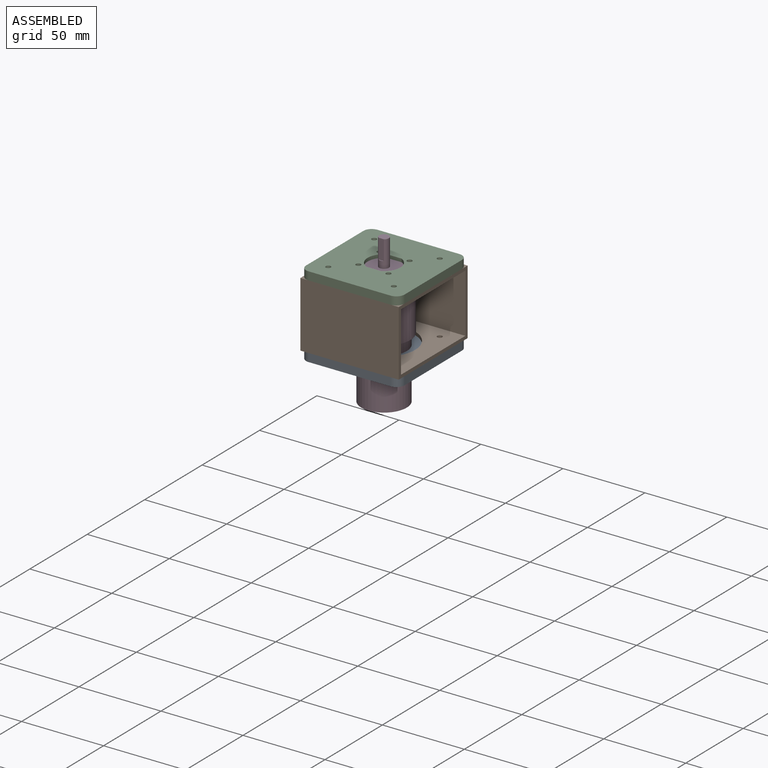
[diagram: assembled view]
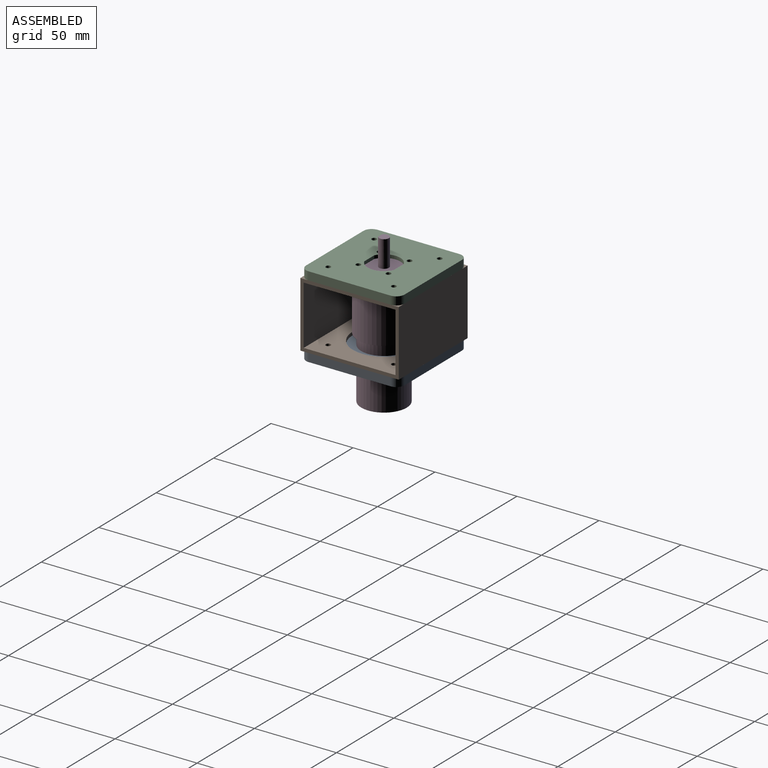
[diagram: assembled view, second angle]
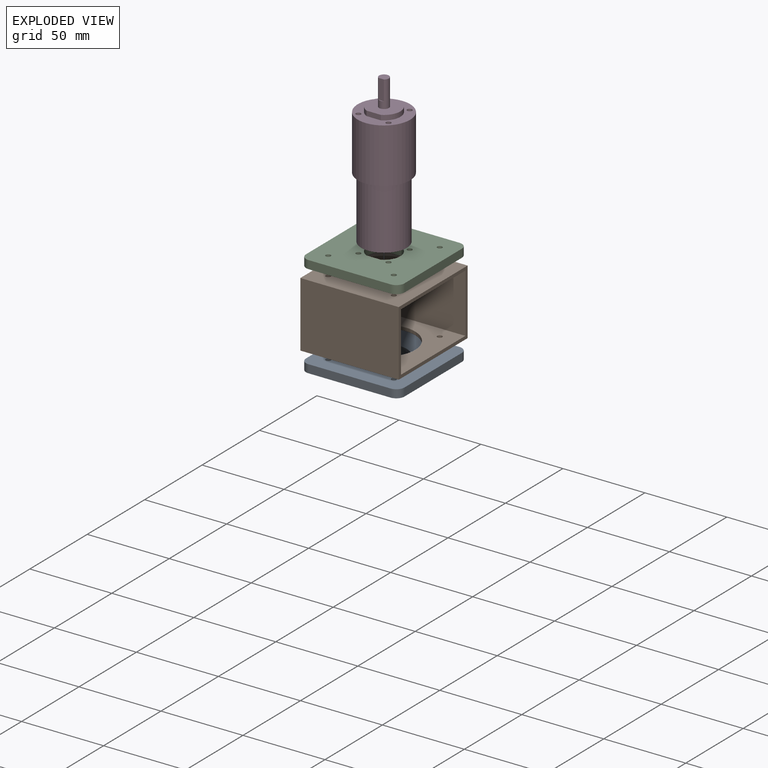
[diagram: exploded view]
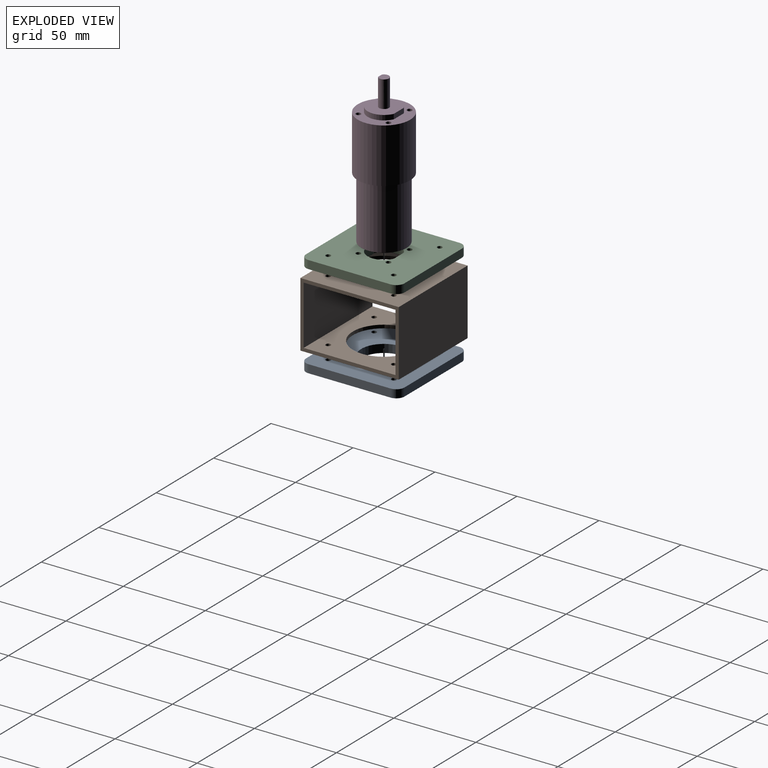
[diagram: exploded view, second angle]
ASSEMBLY  parts=4 mates=6
PART A: 15 faces, bbox 60x60x5 mm
  f0: plane 50x5mm, normal (-1,0,0), area 250mm2, adj f9,f10,f11,f14
  f1: plane 50x5mm, normal (0,-1,0), area 250mm2, adj f9,f10,f11,f12
  f2: plane 50x5mm, normal (1,0,0), area 250mm2, adj f9,f10,f12,f13
  f3: cylinder r=1.5mm len=5mm, axis (0,0,-1), area 47.1mm2, adj f9,f10
  f4: cylinder r=1.5mm len=5mm, axis (0,0,-1), area 47.1mm2, adj f9,f10
  f5: cylinder r=1.5mm len=5mm, axis (0,0,-1), area 47.1mm2, adj f9,f10
  f6: cylinder r=1.5mm len=5mm, axis (0,0,-1), area 47.1mm2, adj f9,f10
  f7: plane 50x5mm, normal (0,1,0), area 250mm2, adj f9,f10,f13,f14
  f8: cylinder r=13.85mm len=27.7mm, axis (0,0,-1), area 435.1mm2, adj f9,f10
  f9: plane 60x60mm, normal (0,0,1), area 2947.6mm2, adj f0,f1,f2,f3,f4,f5,f6,f7
  f10: plane 60x60mm, normal (0,0,-1), area 2947.6mm2, adj f0,f1,f2,f3,f4,f5,f6,f7
  f11: cylinder r=5mm len=5mm, axis (0,0,1), area 39.3mm2, adj f0,f1,f9,f10
  f12: cylinder r=5mm len=5mm, axis (0,0,-1), area 39.3mm2, adj f1,f2,f9,f10
  f13: cylinder r=5mm len=5mm, axis (0,0,1), area 39.3mm2, adj f2,f7,f9,f10
  f14: cylinder r=5mm len=5mm, axis (0,0,-1), area 39.3mm2, adj f0,f7,f9,f10
PART B: 20 faces, bbox 60x60x40 mm
  f0: plane 60x40mm, normal (-1,0,0), area 384mm2, adj f7,f12,f14,f15,f16,f17,f18,f19
  f1: plane 60x40mm, normal (1,0,0), area 384mm2, adj f7,f12,f14,f15,f16,f17,f18,f19
  f2: cylinder r=1.5mm len=3mm, axis (0,0,-1), area 18.8mm2, adj f14,f17
  f3: cylinder r=1.5mm len=3mm, axis (0,0,-1), area 18.8mm2, adj f14,f17
  f4: cylinder r=1.5mm len=3mm, axis (0,0,-1), area 18.8mm2, adj f14,f17
  f5: cylinder r=19mm len=38mm, axis (0,0,-1), area 238.8mm2, adj f14,f17
  f6: cylinder r=1.5mm len=3mm, axis (0,0,-1), area 18.8mm2, adj f14,f17
  f7: plane 60x40mm, normal (0,-1,0), area 2400mm2, adj f0,f1,f14,f15
  f8: cylinder r=1.5mm len=3mm, axis (0,0,-1), area 18.8mm2, adj f15,f19
  f9: cylinder r=1.5mm len=3mm, axis (0,0,-1), area 18.8mm2, adj f15,f19
  f10: cylinder r=1.5mm len=3mm, axis (0,0,-1), area 18.8mm2, adj f15,f19
  f11: cylinder r=19mm len=38mm, axis (0,0,-1), area 238.8mm2, adj f15,f19
  f12: plane 60x40mm, normal (0,1,0), area 2400mm2, adj f0,f1,f14,f15
  f13: cylinder r=1.5mm len=3mm, axis (0,0,-1), area 18.8mm2, adj f15,f19
  f14: plane 60x60mm, normal (0,0,1), area 2437.6mm2, adj f0,f1,f2,f3,f4,f5,f6,f7
  f15: plane 60x60mm, normal (0,0,-1), area 2437.6mm2, adj f0,f1,f7,f8,f9,f10,f11,f12
  f16: plane 60x36mm, normal (0,-1,0), area 2160mm2, adj f0,f1,f17,f19
  f17: plane 60x56mm, normal (0,0,-1), area 2197.6mm2, adj f0,f1,f2,f3,f4,f5,f6,f16
  f18: plane 60x36mm, normal (0,1,0), area 2160mm2, adj f0,f1,f17,f19
  f19: plane 60x56mm, normal (0,0,1), area 2197.6mm2, adj f0,f1,f8,f9,f10,f11,f13,f16
PART C: 22 faces, bbox 60x60x5 mm
  f0: cylinder r=10mm len=18mm, axis (0,0,-1), area 112mm2, adj f1,f13,f16,f17
  f1: plane 8.72x5mm, normal (0,1,0), area 43.6mm2, adj f0,f2,f16,f17
  f2: cylinder r=10mm len=18mm, axis (0,0,-1), area 112mm2, adj f1,f13,f16,f17
  f3: plane 50x5mm, normal (-1,0,0), area 250mm2, adj f16,f17,f18,f21
  f4: plane 50x5mm, normal (0,-1,0), area 250mm2, adj f16,f17,f18,f19
  f5: plane 50x5mm, normal (1,0,0), area 250mm2, adj f16,f17,f19,f20
  f6: cylinder r=1.5mm len=5mm, axis (0,0,-1), area 47.1mm2, adj f16,f17
  f7: cylinder r=1.5mm len=5mm, axis (0,0,-1), area 47.1mm2, adj f16,f17
  f8: cylinder r=1.5mm len=5mm, axis (0,0,-1), area 47.1mm2, adj f16,f17
  f9: cylinder r=1.5mm len=5mm, axis (0,0,-1), area 47.1mm2, adj f16,f17
  f10: cylinder r=1.5mm len=5mm, axis (0,0,-1), area 47.1mm2, adj f16,f17
  f11: cylinder r=1.5mm len=5mm, axis (0,0,-1), area 47.1mm2, adj f16,f17
  f12: cylinder r=1.5mm len=5mm, axis (0,0,-1), area 47.1mm2, adj f16,f17
  f13: plane 8.72x5mm, normal (0,-1,0), area 43.6mm2, adj f0,f2,f16,f17
  f14: plane 50x5mm, normal (0,1,0), area 250mm2, adj f16,f17,f20,f21
  f15: cylinder r=1.5mm len=5mm, axis (0,0,-1), area 47.1mm2, adj f16,f17
  f16: plane 60x60mm, normal (0,0,1), area 3219.6mm2, adj f0,f1,f2,f3,f4,f5,f6,f7
  f17: plane 60x60mm, normal (0,0,-1), area 3219.6mm2, adj f0,f1,f2,f3,f4,f5,f6,f7
  f18: cylinder r=5mm len=5mm, axis (0,0,1), area 39.3mm2, adj f3,f4,f16,f17
  f19: cylinder r=5mm len=5mm, axis (0,0,-1), area 39.3mm2, adj f4,f5,f16,f17
  f20: cylinder r=5mm len=5mm, axis (0,0,1), area 39.3mm2, adj f5,f14,f16,f17
  f21: cylinder r=5mm len=5mm, axis (0,0,-1), area 39.3mm2, adj f3,f14,f16,f17
PART D: 22 faces, bbox 90.5x32x32 mm
  f0: cylinder r=10mm len=18mm, axis (1,0,0), area 67.2mm2, adj f2,f8,f10,f11
  f1: cylinder r=10mm len=18mm, axis (1,0,0), area 67.2mm2, adj f2,f8,f10,f11
  f2: plane 20x18mm, normal (-1,0,0), area 274.1mm2, adj f0,f1,f9,f10,f11
  f3: plane 6x5.5mm, normal (-1,0,0), area 27.1mm2, adj f9,f20
  f4: plane 27.7x27.7mm, normal (1,0,0), area 602.6mm2, adj f5
  f5: cylinder r=13.85mm len=37.8mm, axis (1,0,0), area 3289.4mm2, adj f4,f6
  f6: plane 32x32mm, normal (1,0,0), area 201.6mm2, adj f5,f7
  f7: cylinder r=16mm len=33.4mm, axis (1,0,0), area 3357.7mm2, adj f6,f8
  f8: plane 32x32mm, normal (-1,0,0), area 473.6mm2, adj f0,f1,f7,f10,f11,f12,f14,f16
  f9: cylinder r=3mm len=16.3mm, axis (1,0,0), area 265.1mm2, adj f2,f3,f20,f21
  f10: plane 8.72x3mm, normal (0,0,-1), area 26.2mm2, adj f0,f1,f2,f8
  f11: plane 8.72x3mm, normal (0,0,1), area 26.2mm2, adj f0,f1,f2,f8
  f12: cylinder r=1.5mm len=10mm, axis (-1,0,0), area 94.2mm2, adj f8,f13
  f13: plane 3x3mm, normal (-1,0,0), area 7.1mm2, adj f12
  f14: cylinder r=1.5mm len=10mm, axis (-1,0,0), area 94.2mm2, adj f8,f15
  f15: plane 3x3mm, normal (-1,0,0), area 7.1mm2, adj f14
  f16: cylinder r=1.5mm len=10mm, axis (-1,0,0), area 94.2mm2, adj f8,f17
  f17: plane 3x3mm, normal (-1,0,0), area 7.1mm2, adj f16
  f18: cylinder r=1.5mm len=10mm, axis (-1,0,0), area 94.2mm2, adj f8,f19
  f19: plane 3x3mm, normal (-1,0,0), area 7.1mm2, adj f18
  f20: plane 12x3.32mm, normal (0,0,1), area 39.8mm2, adj f3,f9,f21
  f21: plane 3.32x0.5mm, normal (-1,0,0), area 1.1mm2, adj f9,f20
PLACE A t=(0,0,-5)mm
PLACE B at identity fixed
PLACE C rot(axis=(0.83,0.55,-0.1),0deg) t=(0,0,40)mm
PLACE D rot(axis=(0.58,0.58,-0.58),120deg) t=(30,30,59.3)mm
MATE revolute D.f16 <-> C.f10  axis (0,0,1) through (20.81,39.19,40)mm
MATE revolute B.f6 <-> C.f15  axis (0,0,1) through (50,50,40)mm
MATE revolute B.f3 <-> C.f7  axis (0,0,-1) through (10,10,40)mm
MATE cylindrical C.f0 <-> D.f0  axis (0,0,-1) through (30,30,40)mm
MATE revolute B.f6 <-> A.f3  axis (0,0,-1) through (50,50,0)mm
MATE revolute B.f3 <-> A.f5  axis (0,0,-1) through (10,10,0)mm
